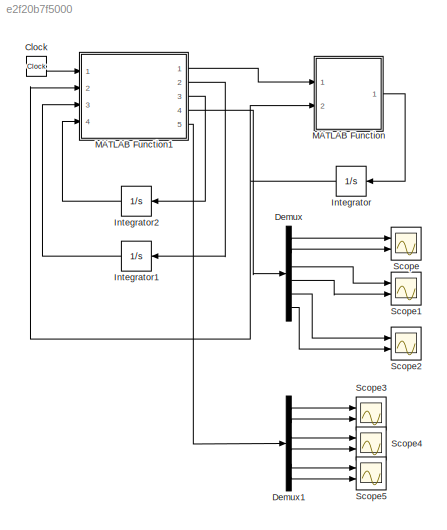
MODEL slx_e2f20b7f5000
KIND model
CONFIG AbsTol = auto
CONFIG EnableMultiTasking = off
CONFIG FixedStep = auto
CONFIG MaxStep = auto
CONFIG MinStep = auto
CONFIG RelTol = 1e-3
CONFIG SampleTimeConstraint = Unconstrained
CONFIG SolverName = VariableStepAuto
CONFIG StartTime = 0.0
CONFIG StopTime = 30
BLOCK [Clock] Clock
BLOCK [Demux] Demux
  Outputs = 6
  Ports = [1, 6]
BLOCK [Demux] Demux1
  Outputs = 6
  Ports = [1, 6]
BLOCK [Integrator] Integrator
  InitialCondition = [0.5,-0.3,0.4]'
  NameLocation = top
  Ports = [1, 1]
BLOCK [Integrator] Integrator1
  InitialCondition = zeros(27,1)
  NameLocation = top
  Ports = [1, 1]
BLOCK [Integrator] Integrator2
  InitialCondition = [0.5,-0.3,0.4]'
  NameLocation = top
  Ports = [1, 1]
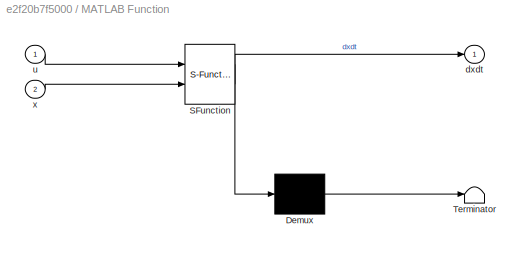
BLOCK [SubSystem] MATLAB Function
  ErrorFcn = Stateflow.Translate.translate
  PermitHierarchicalResolution = ExplicitOnly
  Ports = [2, 1]
  RequestExecContextInheritance = off
  SFBlockType = MATLAB Function
  TreatAsAtomicUnit = on
BLOCK [Demux] MATLAB Function/ Demux 
  Outputs = 1
  Ports = [1, 1]
BLOCK [S-Function] MATLAB Function/ SFunction 
  EnableBusSupport = on
  FunctionName = sf_sfun
  PortCounts = [2 2]
  Ports = [2, 2]
  SFcnIsStateOwnerBlock = off
  SFunctionDeploymentMode = off
  Tag = Stateflow S-Function 2
BLOCK [Terminator] MATLAB Function/ Terminator 
BLOCK [Outport] MATLAB Function/dxdt
BLOCK [Inport] MATLAB Function/u
BLOCK [Inport] MATLAB Function/x
  Port = 2
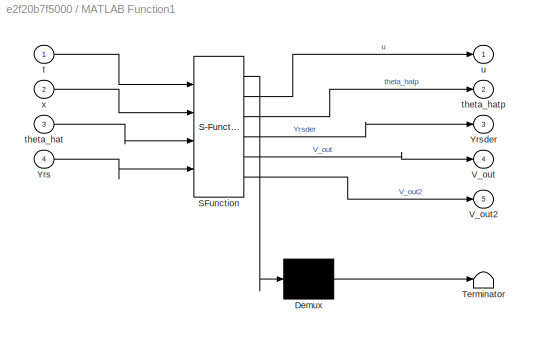
BLOCK [SubSystem] MATLAB Function1
  ErrorFcn = Stateflow.Translate.translate
  PermitHierarchicalResolution = ExplicitOnly
  Ports = [4, 5]
  RequestExecContextInheritance = off
  SFBlockType = MATLAB Function
  TreatAsAtomicUnit = on
BLOCK [Demux] MATLAB Function1/ Demux 
  Outputs = 1
  Ports = [1, 1]
BLOCK [S-Function] MATLAB Function1/ SFunction 
  EnableBusSupport = on
  FunctionName = sf_sfun
  PortCounts = [4 6]
  Ports = [4, 6]
  SFcnIsStateOwnerBlock = off
  SFunctionDeploymentMode = off
  Tag = Stateflow S-Function 1
BLOCK [Terminator] MATLAB Function1/ Terminator 
BLOCK [Outport] MATLAB Function1/V_out
  Port = 4
BLOCK [Outport] MATLAB Function1/V_out2
  Port = 5
BLOCK [Inport] MATLAB Function1/Yrs
  Port = 4
BLOCK [Outport] MATLAB Function1/Yrsder
  Port = 3
BLOCK [Inport] MATLAB Function1/t
BLOCK [Inport] MATLAB Function1/theta_hat
  Port = 3
BLOCK [Outport] MATLAB Function1/theta_hatp
  Port = 2
BLOCK [Outport] MATLAB Function1/u
BLOCK [Inport] MATLAB Function1/x
  Port = 2
BLOCK [Scope] Scope
  Floating = off
  NumInputPorts = 2
  Ports = [2]
  ScopeSpecificationString = Simulink.scopes.TimeScopeBlockCfg('CurrentConfiguration', extmgr.ConfigurationSet(extmgr.Configuration('Core','General UI',true),extmgr.Configuration('Core','Source UI',true),extmgr.Configuration('Sources','WiredSimulink',true),extmgr.Configuration('Visuals','Time Domain',true,'SerializedDisplays',{struct('MinYLimReal','-0.625','MaxYLimReal','0.625','YLabelReal','','MinYLimMag','0.00000','MaxYLimM...<+1450ch>
BLOCK [Scope] Scope1
  Floating = off
  NumInputPorts = 2
  Ports = [2]
  ScopeSpecificationString = Simulink.scopes.TimeScopeBlockCfg('CurrentConfiguration', extmgr.ConfigurationSet(extmgr.Configuration('Core','General UI',true),extmgr.Configuration('Core','Source UI',true),extmgr.Configuration('Sources','WiredSimulink',true,'DataLoggingVariableName','ScopeData1'),extmgr.Configuration('Visuals','Time Domain',true,'SerializedDisplays',{struct('MinYLimReal','-4.64243','MaxYLimReal','2.7054','YLabe...<+1505ch>
BLOCK [Scope] Scope2
  Floating = off
  NumInputPorts = 2
  Ports = [2]
  ScopeSpecificationString = Simulink.scopes.TimeScopeBlockCfg('CurrentConfiguration', extmgr.ConfigurationSet(extmgr.Configuration('Core','General UI',true),extmgr.Configuration('Core','Source UI',true),extmgr.Configuration('Sources','WiredSimulink',true,'DataLoggingVariableName','ScopeData2'),extmgr.Configuration('Visuals','Time Domain',true,'SerializedDisplays',{struct('MinYLimReal','-64.81137','MaxYLimReal','68.41981','YL...<+1527ch>
BLOCK [Scope] Scope3
  Floating = off
  NumInputPorts = 2
  Ports = [2]
  ScopeSpecificationString = Simulink.scopes.TimeScopeBlockCfg('CurrentConfiguration', extmgr.ConfigurationSet(extmgr.Configuration('Core','General UI',true),extmgr.Configuration('Core','Source UI',true),extmgr.Configuration('Sources','WiredSimulink',true,'DataLoggingVariableName','ScopeData3'),extmgr.Configuration('Visuals','Time Domain',true,'SerializedDisplays',{struct('MinYLimReal','-0.625','MaxYLimReal','0.625','YLabelRe...<+1417ch>
BLOCK [Scope] Scope4
  Floating = off
  NumInputPorts = 2
  Ports = [2]
  ScopeSpecificationString = Simulink.scopes.TimeScopeBlockCfg('CurrentConfiguration', extmgr.ConfigurationSet(extmgr.Configuration('Core','General UI',true),extmgr.Configuration('Core','Source UI',true),extmgr.Configuration('Sources','WiredSimulink',true,'DataLoggingVariableName','ScopeData4'),extmgr.Configuration('Visuals','Time Domain',true,'SerializedDisplays',{struct('MinYLimReal','-0.625','MaxYLimReal','0.625','YLabelRe...<+1389ch>
BLOCK [Scope] Scope5
  Floating = off
  NumInputPorts = 2
  Ports = [2]
  ScopeSpecificationString = Simulink.scopes.TimeScopeBlockCfg('CurrentConfiguration', extmgr.ConfigurationSet(extmgr.Configuration('Core','General UI',true),extmgr.Configuration('Core','Source UI',true),extmgr.Configuration('Sources','WiredSimulink',true,'DataLoggingVariableName','ScopeData5'),extmgr.Configuration('Visuals','Time Domain',true,'SerializedDisplays',{struct('MinYLimReal','-0.625','MaxYLimReal','0.625','YLabelRe...<+1389ch>
LINE Clock:1 -> MATLAB Function1:1
LINE Demux1:1 -> Scope3:1
LINE Demux1:2 -> Scope3:2
LINE Demux1:3 -> Scope4:1
LINE Demux1:4 -> Scope4:2
LINE Demux1:5 -> Scope5:1
LINE Demux1:6 -> Scope5:2
LINE Demux:1 -> Scope:1
LINE Demux:2 -> Scope:2
LINE Demux:3 -> Scope1:1
LINE Demux:4 -> Scope1:2
LINE Demux:5 -> Scope2:1
LINE Demux:6 -> Scope2:2
LINE Integrator1:1 -> MATLAB Function1:3
LINE Integrator2:1 -> MATLAB Function1:4
NET Integrator:1 -> MATLAB Function1:2, MATLAB Function:2
LINE MATLAB Function1:1 -> MATLAB Function:1
LINE MATLAB Function1:2 -> Integrator1:1
LINE MATLAB Function1:3 -> Integrator2:1
LINE MATLAB Function1:4 -> Demux:1
LINE MATLAB Function1:5 -> Demux1:1
LINE MATLAB Function:1 -> Integrator:1
note: NET lines group one-source signal fan-out (src -> all destinations, sorted); 1:1 wires keep LINE
CHART MATLAB Function1 states=1 transitions=1
  STATE_LABEL 'eML_blk_kernel()'
  STATE_LABEL 'SCRIPT:\nfunction [u,theta_hatp,Yrsder,V_out,V_out2]= fcn(t,x,theta_hat,Yrs)\n\nx1=x(1,1);\nx2=x(2,1); \nx3=x(3,1);\n\nYr=Yrs(1,1);\nYrp=Yrs(2,1); \nYr2p=Yrs(3,1);\n\nyr=0.5*sin(t);\nyrp=0.5*cos(t);\nyr2p=-0.5*sin(t);\nyr3p=-0.5*cos(t);\n% --. Parametros del filtro.--\npsi1=1; psi2=1; psi3=1;\nomega1=1; omega2=1; omega3=1;\ntau1=0.01; tau2=0.01; tau3=0.01;\nT1=psi1*exp(-omega1*t)+tau1;\nT2=psi2*exp(-omega2*t)+tau2;\nT...<+2249ch>'
CHART MATLAB Function states=1 transitions=1
  STATE_LABEL 'eML_blk_kernel()'
  STATE_LABEL 'SCRIPT:\nfunction dxdt = fcn(u,x)\nx1=x(1,1);\nx2=x(2,1); \nx3=x(3,1);\n% % --. Ejemplo1 .--\n% f1=x1^3;\n% f2=x1^2+x2^2;\n% f3=0;\n% --. Ejemplo2 .--\nf1=2*x1^2*sin(x2);\nf2=x1^2+x1*x2+x2*cos(x1);\nf3=x1*x3+x2^2+x3*sin(x2);\n\ndxdt=zeros(3,1);\ndxdt(1,1)=x2+f1;\ndxdt(2,1)=x3+f2;\ndxdt(3,1)=u+f3;\n\n% dxdt=zeros(3,1);\n% dxdt(1,1)=x2;\n% dxdt(2,1)=x3;\n% dxdt(3,1)=u;\ny=x1;\n\n'
CHART  states=0 transitions=0
CHART  states=0 transitions=0
